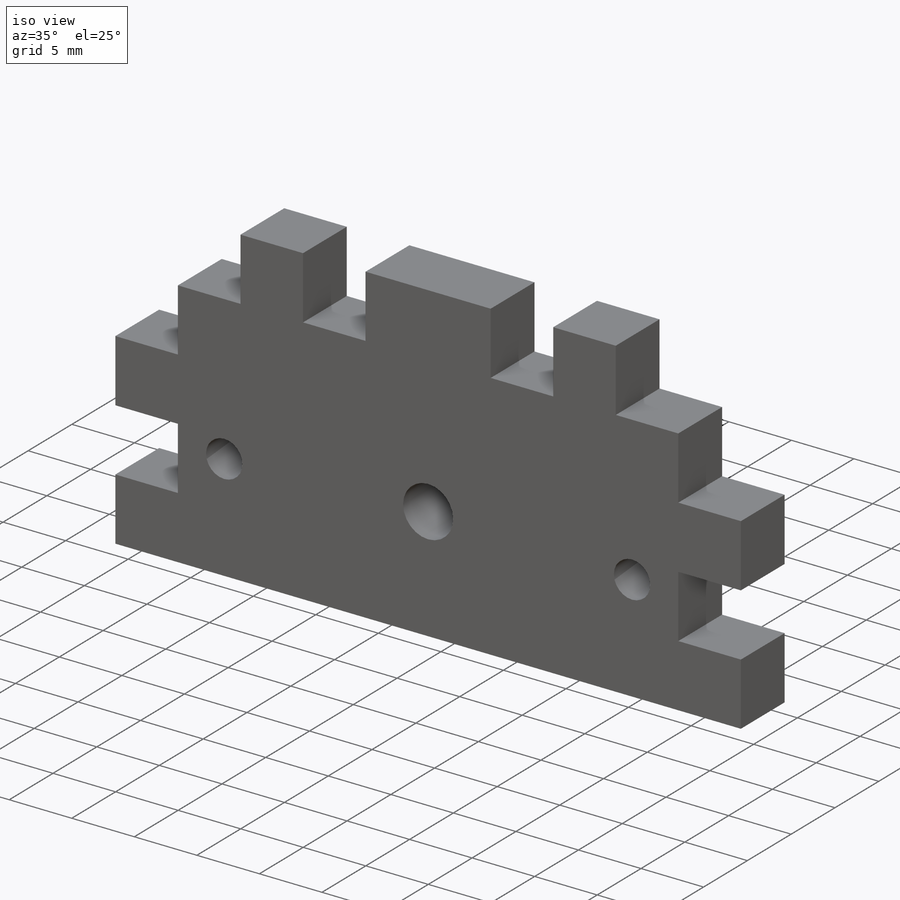
[diagram: iso view]
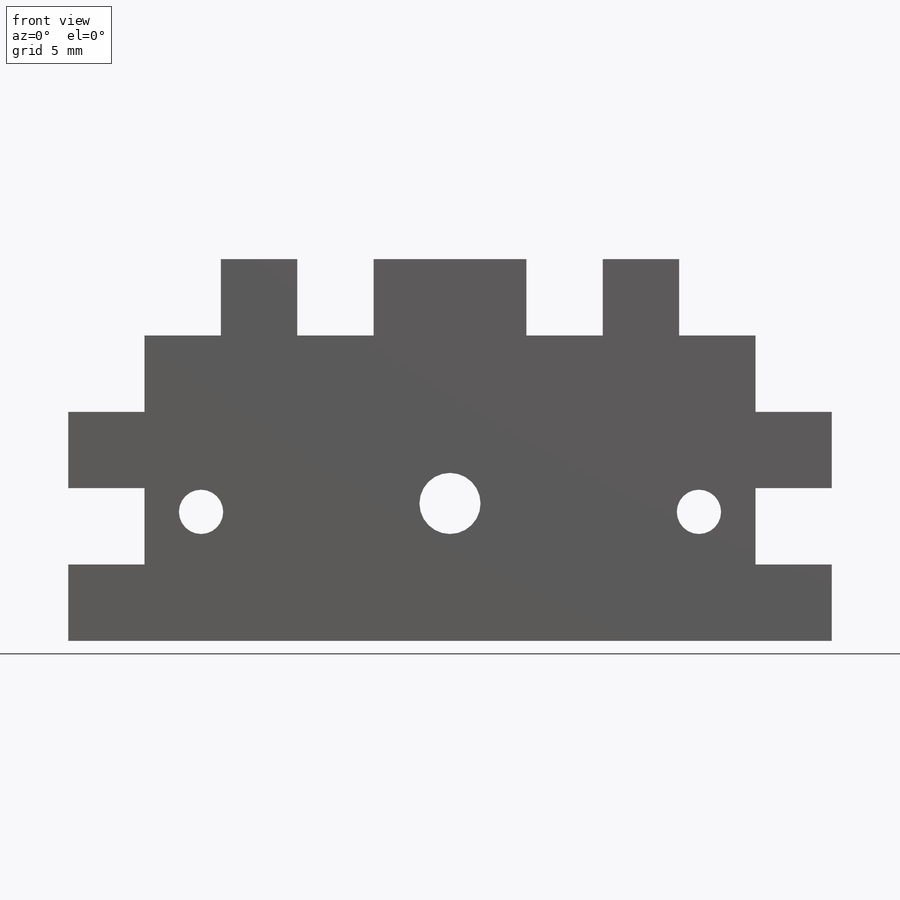
[diagram: front view]
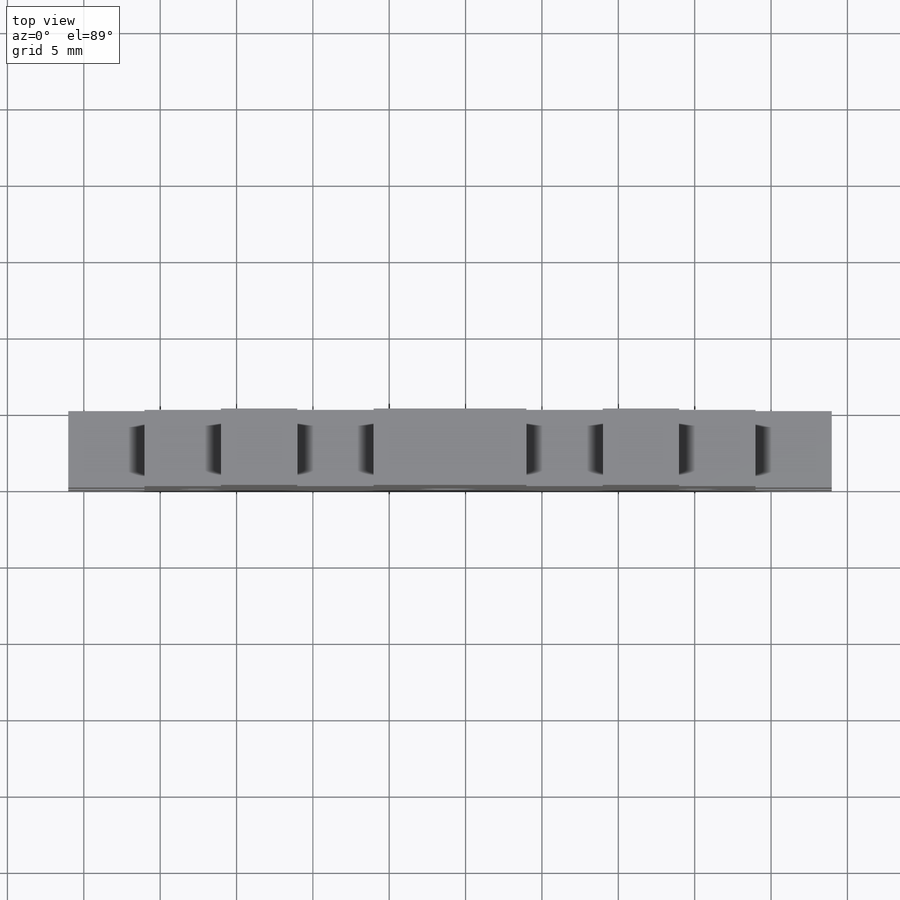
[diagram: top view]
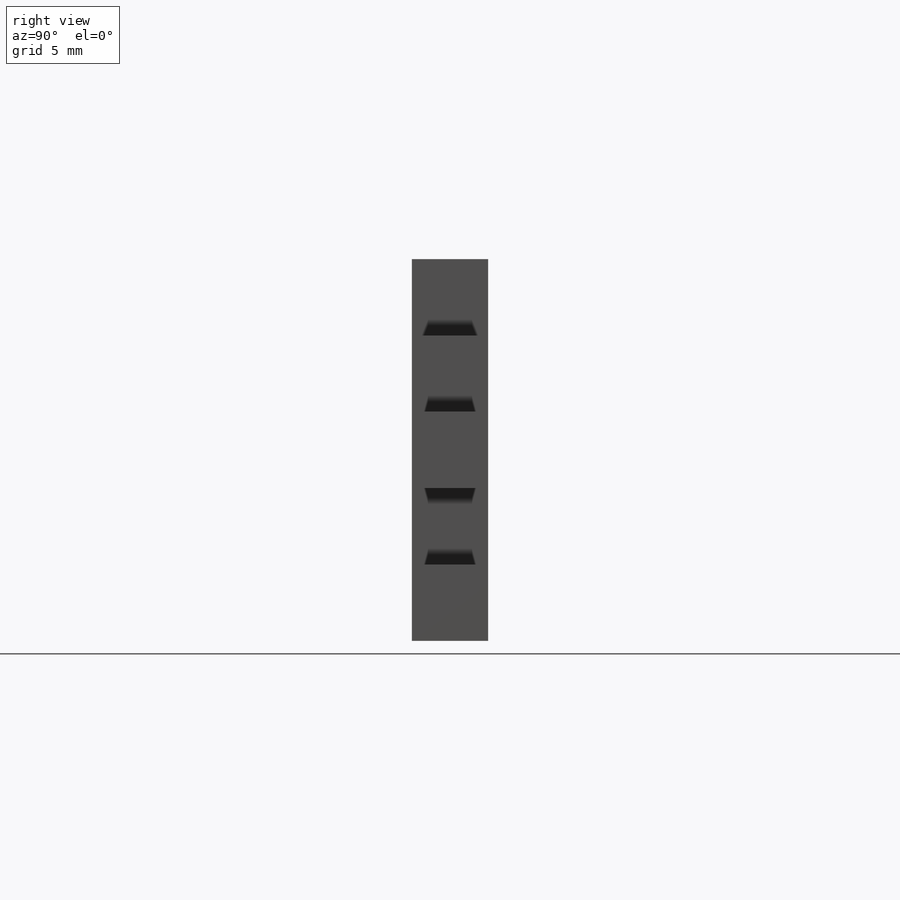
[diagram: right view]
SOLIDWORKS PART (.sldprt)
format: sldprt  version: not decoded by parser v0  size: 222,720 bytes
history: native  units: mm
features: plane x3, sketch x3, cut_extrude x2, material x1, extrude x1, mirror x1 (+10 scaffold rows collapsed)
feature tree (21):
  scaffold x10  (default folders/planes/origin — collapsed)
  material  "Matériau <non spécifié>"
  plane  "Plan de face"
  plane  "Plan de dessus"
  plane  "Plan de droite"
  sketch  "Esquisse1"  dims[D1=25.0mm]
  extrude  "Boss.-Extru.1"  Depth=5mm
  sketch  "Esquisse3"  dims[c1.D8=~1.643274mm c1.D1=2.5mm c1.D2=10.0mm c2.D1=5.0mm c2.D2=2.5mm c2.D3=5.0mm c2.D4=5.0mm c2.D5=5.0mm c3.D4=5.0mm c3.D1=0.0mm c3.D2=5.0mm c3.D3=5.0mm c4.D4=5.0mm c4.D5=5.0mm c4.D6=5.0mm c4.D7=8.45mm c4.D8=8.7mm c4.D9=20.0mm c4.D1=5.0mm c5.D9=5.0mm c5.D10=5.0mm c5.D3=~8.169084mm c6.D9=5.0mm c6.D1=5.0mm c6.D2=10.0mm]
  cut_extrude  "Enlèv. mat.-Extru.1"  Depth=5mm
  mirror  "Symétrie1"
  sketch  "Esquisse5"  dims[D1=4.0mm D2=9.0mm D3=20.0mm D4=5.0mm]
  cut_extrude  "Enlèv. mat.-Extru.2"  Depth=10mm
decode coverage: 6 of 7 modeling features carry decoded parameters
note: ~ marks probable driven/reference dimensions
note: suppression state not decoded; provenance and decode notes live in map.json
